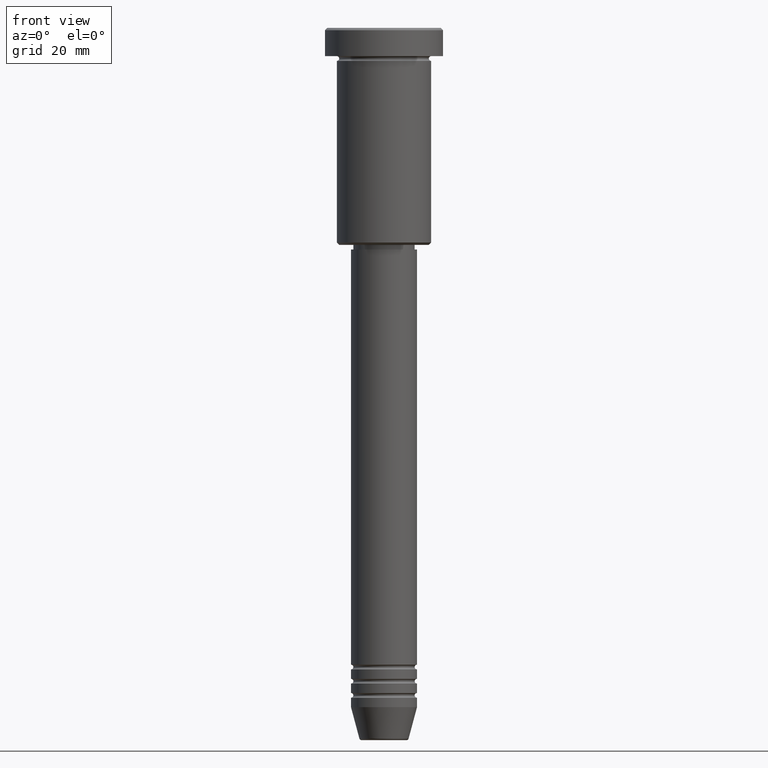
[diagram: clean part render]
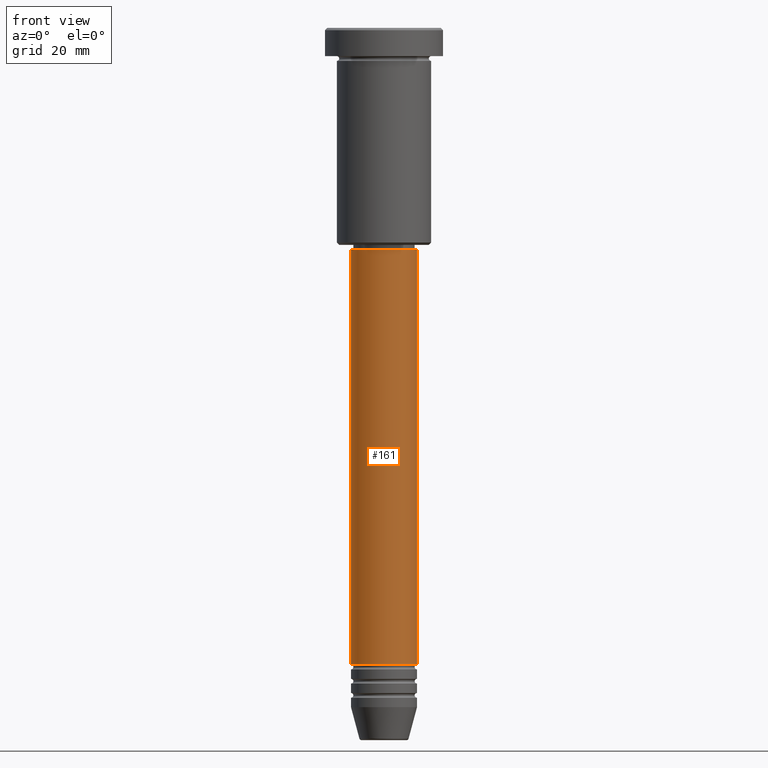
[diagram: same view with one face highlighted and labeled with its STEP entity id]
A machine part, front view. The second image highlights one B-rep face of the part: STEP entity #161.
In plain terms, the highlighted cylindrical surface (edge-blend (fillet) strip) has radius 7 mm, axis along (-0, -0, 1).
Its self-contained STEP definition (entity closure, byte-faithful):
#9 = VERTEX_POINT ( 'NONE', #29 ) ;
#25 = VERTEX_POINT ( 'NONE', #1029 ) ;
#29 = CARTESIAN_POINT ( 'NONE',  ( -7.000000000000000000, 8.572527594031473190E-16, -46.99999999999999289 ) ) ;
#82 = LINE ( 'NONE', #616, #377 ) ;
#135 = DIRECTION ( 'NONE',  ( -0.000000000000000000, -0.000000000000000000, 1.000000000000000000 ) ) ;
#148 = VECTOR ( 'NONE', #135, 1000.000000000000000 ) ;
#161 = ADVANCED_FACE ( 'NONE', ( #694 ), #255, .T. ) ;
#224 = VERTEX_POINT ( 'NONE', #963 ) ;
#232 = DIRECTION ( 'NONE',  ( 1.000000000000000000, 0.000000000000000000, 0.000000000000000000 ) ) ;
#255 = CYLINDRICAL_SURFACE ( 'NONE', #1056, 7.000000000000000000 ) ;
#272 = DIRECTION ( 'NONE',  ( -0.000000000000000000, -0.000000000000000000, 1.000000000000000000 ) ) ;
#377 = VECTOR ( 'NONE', #1079, 1000.000000000000000 ) ;
#447 = EDGE_CURVE ( 'NONE', #25, #224, #837, .T. ) ;
#512 = EDGE_CURVE ( 'NONE', #9, #1005, #894, .T. ) ;
#518 = DIRECTION ( 'NONE',  ( 1.000000000000000000, 0.000000000000000000, 0.000000000000000000 ) ) ;
#545 = ORIENTED_EDGE ( 'NONE', *, *, #780, .F. ) ;
#575 = DIRECTION ( 'NONE',  ( -0.000000000000000000, -0.000000000000000000, 1.000000000000000000 ) ) ;
#586 = ORIENTED_EDGE ( 'NONE', *, *, #447, .T. ) ;
#605 = DIRECTION ( 'NONE',  ( -0.000000000000000000, -0.000000000000000000, 1.000000000000000000 ) ) ;
#616 = CARTESIAN_POINT ( 'NONE',  ( 7.000000000000000000, 0.000000000000000000, 0.000000000000000000 ) ) ;
#622 = CARTESIAN_POINT ( 'NONE',  ( -7.000000000000000000, 8.572527594031473190E-16, 0.000000000000000000 ) ) ;
#653 = AXIS2_PLACEMENT_3D ( 'NONE', #1081, #272, #518 ) ;
#657 = EDGE_LOOP ( 'NONE', ( #545, #586, #663, #1171 ) ) ;
#663 = ORIENTED_EDGE ( 'NONE', *, *, #770, .T. ) ;
#694 = FACE_OUTER_BOUND ( 'NONE', #657, .T. ) ;
#770 = EDGE_CURVE ( 'NONE', #224, #1005, #82, .T. ) ;
#780 = EDGE_CURVE ( 'NONE', #25, #9, #1006, .T. ) ;
#837 = CIRCLE ( 'NONE', #1075, 7.000000000000000000 ) ;
#894 = CIRCLE ( 'NONE', #653, 7.000000000000000000 ) ;
#901 = CARTESIAN_POINT ( 'NONE',  ( 7.000000000000000000, 0.000000000000000000, -46.99999999999999289 ) ) ;
#926 = CARTESIAN_POINT ( 'NONE',  ( 0.000000000000000000, 0.000000000000000000, -134.9999999999999432 ) ) ;
#963 = CARTESIAN_POINT ( 'NONE',  ( 7.000000000000000000, 0.000000000000000000, -134.9999999999999432 ) ) ;
#973 = DIRECTION ( 'NONE',  ( 1.000000000000000000, 0.000000000000000000, 0.000000000000000000 ) ) ;
#1005 = VERTEX_POINT ( 'NONE', #901 ) ;
#1006 = LINE ( 'NONE', #622, #148 ) ;
#1029 = CARTESIAN_POINT ( 'NONE',  ( -7.000000000000000000, 8.572527594031473190E-16, -134.9999999999999432 ) ) ;
#1056 = AXIS2_PLACEMENT_3D ( 'NONE', #1178, #605, #973 ) ;
#1075 = AXIS2_PLACEMENT_3D ( 'NONE', #926, #575, #232 ) ;
#1079 = DIRECTION ( 'NONE',  ( -0.000000000000000000, -0.000000000000000000, 1.000000000000000000 ) ) ;
#1081 = CARTESIAN_POINT ( 'NONE',  ( 0.000000000000000000, 0.000000000000000000, -46.99999999999999289 ) ) ;
#1171 = ORIENTED_EDGE ( 'NONE', *, *, #512, .F. ) ;
#1178 = CARTESIAN_POINT ( 'NONE',  ( 0.000000000000000000, 0.000000000000000000, 0.000000000000000000 ) ) ;